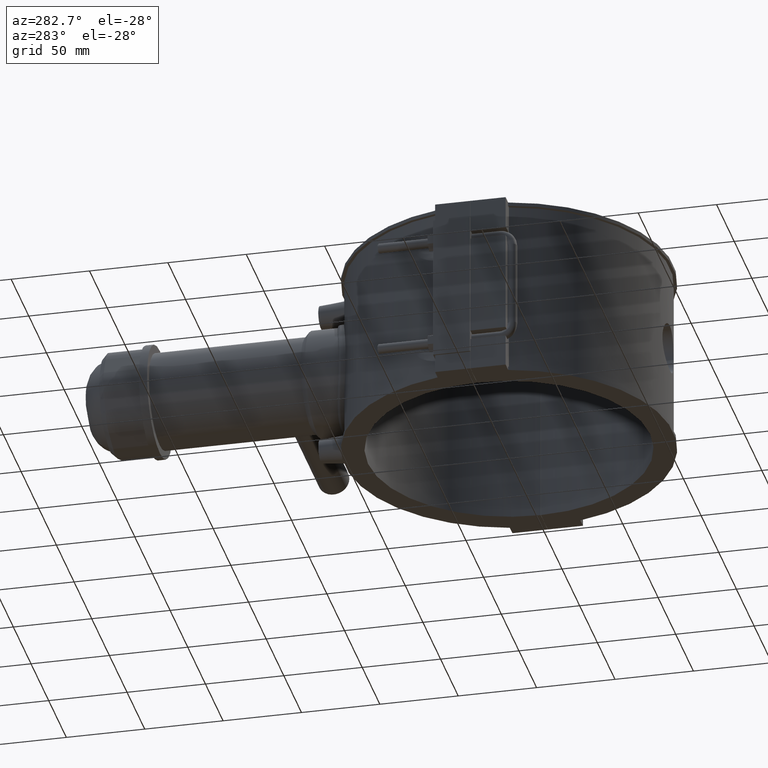
[diagram: clean part render]
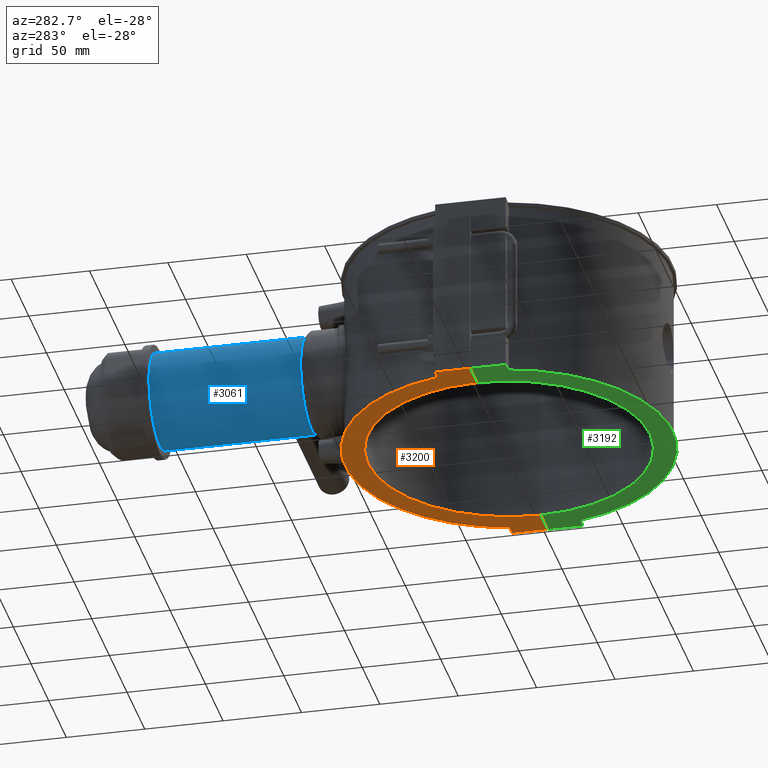
[diagram: same view with three faces highlighted in distinct colors, each labeled with its STEP entity id]
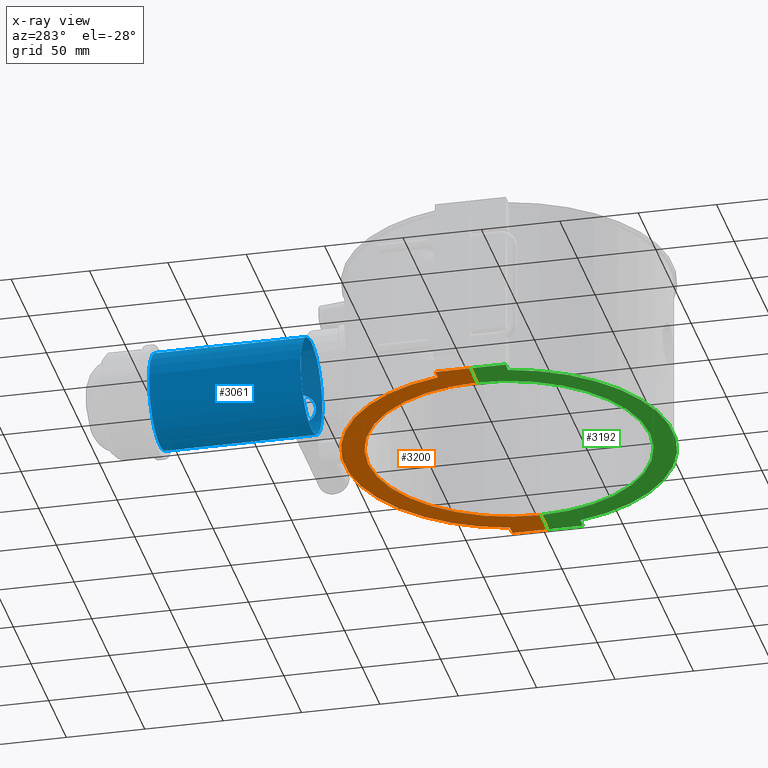
[diagram: x-ray of the same camera — body ghosted, the three highlighted faces saturated]
A machine part, auxiliary view with three faces highlighted in distinct colors.
The next image is the same camera in x-ray (body ghosted, the three faces saturated) — at least one of them is partly hidden behind the body in this view.
Their STEP definitions:

[orange] entity #3200 — the highlighted planar face has unit normal (0, 0, 1).
#108=LINE('',#5175,#387);
#171=LINE('',#5557,#450);
#267=LINE('',#6150,#546);
#316=LINE('',#6461,#595);
#318=LINE('',#6464,#597);
#319=LINE('',#6466,#598);
#387=VECTOR('',#3748,7.29534695523888);
#450=VECTOR('',#3875,22.45);
#546=VECTOR('',#4161,19.50001388889);
#595=VECTOR('',#4322,19.5000138888899);
#597=VECTOR('',#4326,7.29534695523888);
#598=VECTOR('',#4329,22.45);
#935=FACE_OUTER_BOUND('',#1174,.T.);
#1174=EDGE_LOOP('',(#2892,#2893,#2894,#2895,#2896,#2897,#2898,#2899));
#1211=CIRCLE('',#3289,104.652);
#1282=CIRCLE('',#3486,90.);
#1351=VERTEX_POINT('',#5139);
#1352=VERTEX_POINT('',#5140);
#1365=VERTEX_POINT('',#5173);
#1441=VERTEX_POINT('',#5554);
#1442=VERTEX_POINT('',#5556);
#1532=VERTEX_POINT('',#6149);
#1575=VERTEX_POINT('',#6458);
#1576=VERTEX_POINT('',#6460);
#1681=EDGE_CURVE('',#1351,#1352,#1211,.T.);
#1698=EDGE_CURVE('',#1351,#1365,#108,.T.);
#1792=EDGE_CURVE('',#1442,#1441,#171,.T.);
#1932=EDGE_CURVE('',#1532,#1442,#267,.T.);
#2008=EDGE_CURVE('',#1576,#1575,#316,.T.);
#2010=EDGE_CURVE('',#1441,#1352,#318,.T.);
#2011=EDGE_CURVE('',#1365,#1576,#319,.T.);
#2013=EDGE_CURVE('',#1575,#1532,#1282,.T.);
#2892=ORIENTED_EDGE('',*,*,#2008,.T.);
#2893=ORIENTED_EDGE('',*,*,#2013,.T.);
#2894=ORIENTED_EDGE('',*,*,#1932,.T.);
#2895=ORIENTED_EDGE('',*,*,#1792,.T.);
#2896=ORIENTED_EDGE('',*,*,#2010,.T.);
#2897=ORIENTED_EDGE('',*,*,#1681,.F.);
#2898=ORIENTED_EDGE('',*,*,#1698,.T.);
#2899=ORIENTED_EDGE('',*,*,#2011,.T.);
#3016=PLANE('',#3487);
#3200=ADVANCED_FACE('',(#935),#3016,.F.);
#3289=AXIS2_PLACEMENT_3D('',#5141,#3717,#3718);
#3486=AXIS2_PLACEMENT_3D('',#6469,#4334,#4335);
#3487=AXIS2_PLACEMENT_3D('',#6470,#4336,#4337);
#3717=DIRECTION('center_axis',(0.,0.,1.));
#3718=DIRECTION('ref_axis',(0.976614427290077,0.21499828001376,0.));
#3748=DIRECTION('',(1.,0.,0.));
#3875=DIRECTION('',(0.,1.,0.));
#4161=DIRECTION('',(-1.,1.58422235249023E-19,0.));
#4322=DIRECTION('',(-1.,1.58422235249023E-19,0.));
#4326=DIRECTION('',(1.,0.,0.));
#4329=DIRECTION('',(0.,-1.,0.));
#4334=DIRECTION('center_axis',(0.,0.,1.));
#4335=DIRECTION('ref_axis',(-1.,0.,0.));
#4336=DIRECTION('center_axis',(0.,0.,1.));
#4337=DIRECTION('ref_axis',(1.,0.,0.));
#5139=CARTESIAN_POINT('',(102.204653044761,22.5,-59.));
#5140=CARTESIAN_POINT('',(-102.204653044761,22.5,-59.));
#5141=CARTESIAN_POINT('Origin',(0.,0.,-59.));
#5173=CARTESIAN_POINT('',(109.5,22.5,-59.));
#5175=CARTESIAN_POINT('',(109.5,22.5,-59.));
#5554=CARTESIAN_POINT('',(-109.5,22.5,-59.));
#5556=CARTESIAN_POINT('',(-109.5,0.0499999999999989,-59.));
#5557=CARTESIAN_POINT('',(-109.5,22.5,-59.));
#6149=CARTESIAN_POINT('',(-89.99998611111,0.0499999999999989,-59.));
#6150=CARTESIAN_POINT('',(1.79648330050455,0.0499999999999989,-59.));
#6458=CARTESIAN_POINT('',(89.99998611111,0.0499999999999989,-59.));
#6460=CARTESIAN_POINT('',(109.5,0.0499999999999989,-59.));
#6461=CARTESIAN_POINT('',(1.79648330050455,0.0499999999999989,-59.));
#6464=CARTESIAN_POINT('',(-100.102497471342,22.5,-59.));
#6466=CARTESIAN_POINT('',(109.5,-22.5,-59.));
#6469=CARTESIAN_POINT('Origin',(0.,0.,-59.));
#6470=CARTESIAN_POINT('Origin',(-105.907033398991,1.00372537223288E-16,
-59.));

[blue] entity #3061 — the highlighted cylindrical surface (bore or boss wall) has radius 30.6 mm, axis along (0, 1, 0).
#608=FACE_BOUND('',#990,.T.);
#609=FACE_BOUND('',#991,.T.);
#658=B_SPLINE_CURVE_WITH_KNOTS('',3,(#4525,#4526,#4527,#4528,#4529,#4530,
#4531,#4532,#4533,#4534,#4535,#4536,#4537,#4538,#4539,#4540,#4541,#4542,
#4543,#4544,#4545,#4546,#4547,#4548,#4549,#4550,#4551,#4552,#4553,#4554,
#4555,#4556,#4557,#4558),.UNSPECIFIED.,.T.,.F.,(4,2,2,2,2,2,2,2,2,2,2,2,
2,2,2,2,4),(0.,0.379801307840264,0.759602615680529,1.13924189562718,1.51888117557384,
1.89852045552049,2.27815973546714,2.65796104330741,3.03776235114767,3.41756365898794,
3.7973649668282,4.17700424677486,4.55664352672151,4.93628280666816,5.31592208661482,
5.69572339445508,6.07552470229535),.UNSPECIFIED.);
#716=CYLINDRICAL_SURFACE('',#3278,30.6);
#796=FACE_OUTER_BOUND('',#989,.T.);
#989=EDGE_LOOP('',(#2196));
#990=EDGE_LOOP('',(#2197));
#991=EDGE_LOOP('',(#2198));
#1201=CIRCLE('',#3261,30.6);
#1208=CIRCLE('',#3279,30.6);
#1290=VERTEX_POINT('',#4524);
#1334=VERTEX_POINT('',#4697);
#1344=VERTEX_POINT('',#4766);
#1584=EDGE_CURVE('',#1290,#1290,#658,.T.);
#1652=EDGE_CURVE('',#1334,#1334,#1201,.T.);
#1671=EDGE_CURVE('',#1344,#1344,#1208,.T.);
#2196=ORIENTED_EDGE('',*,*,#1652,.T.);
#2197=ORIENTED_EDGE('',*,*,#1584,.T.);
#2198=ORIENTED_EDGE('',*,*,#1671,.F.);
#3061=ADVANCED_FACE('',(#796,#608,#609),#716,.T.);
#3261=AXIS2_PLACEMENT_3D('',#4698,#3650,#3651);
#3278=AXIS2_PLACEMENT_3D('',#4765,#3695,#3696);
#3279=AXIS2_PLACEMENT_3D('',#4767,#3697,#3698);
#3650=DIRECTION('center_axis',(0.,1.,3.06161699786838E-16));
#3651=DIRECTION('ref_axis',(1.,0.,0.));
#3695=DIRECTION('center_axis',(0.,1.,3.06161699786838E-16));
#3696=DIRECTION('ref_axis',(0.,0.,1.));
#3697=DIRECTION('center_axis',(0.,1.,3.06161699786838E-16));
#3698=DIRECTION('ref_axis',(1.,0.,0.));
#4524=CARTESIAN_POINT('',(28.9198893497192,140.,-10.));
#4525=CARTESIAN_POINT('Ctrl Pts',(28.9198893497192,140.,-10.));
#4526=CARTESIAN_POINT('Ctrl Pts',(28.9198893497192,138.733995640532,-10.));
#4527=CARTESIAN_POINT('Ctrl Pts',(29.0117476879204,137.390597467506,-9.74507535202427));
#4528=CARTESIAN_POINT('Ctrl Pts',(29.3356105596978,134.929935462719,-8.72180812961023));
#4529=CARTESIAN_POINT('Ctrl Pts',(29.562117183714,133.811768720189,-7.95390434391968));
#4530=CARTESIAN_POINT('Ctrl Pts',(29.9813908363416,132.046472284967,-6.18860790869784));
#4531=CARTESIAN_POINT('Ctrl Pts',(30.2024962346254,131.278278195008,-5.0702905300735));
#4532=CARTESIAN_POINT('Ctrl Pts',(30.51378978599,130.254794931872,-2.60907219497214));
#4533=CARTESIAN_POINT('Ctrl Pts',(30.6,130.,-1.26546426648885));
#4534=CARTESIAN_POINT('Ctrl Pts',(30.6,130.,1.26546426648885));
#4535=CARTESIAN_POINT('Ctrl Pts',(30.51378978599,130.254794931872,2.60907219497216));
#4536=CARTESIAN_POINT('Ctrl Pts',(30.2024962346254,131.278278195008,5.07029053007352));
#4537=CARTESIAN_POINT('Ctrl Pts',(29.9813908363416,132.046472284967,6.18860790869784));
#4538=CARTESIAN_POINT('Ctrl Pts',(29.562117183714,133.811768720189,7.95390434391968));
#4539=CARTESIAN_POINT('Ctrl Pts',(29.3356105596978,134.929935462718,8.72180812961023));
#4540=CARTESIAN_POINT('Ctrl Pts',(29.0117476879204,137.390597467506,9.74507535202427));
#4541=CARTESIAN_POINT('Ctrl Pts',(28.9198893497192,138.733995640532,10.));
#4542=CARTESIAN_POINT('Ctrl Pts',(28.9198893497192,141.266004359468,10.));
#4543=CARTESIAN_POINT('Ctrl Pts',(29.0117476879204,142.609402532494,9.74507535202427));
#4544=CARTESIAN_POINT('Ctrl Pts',(29.3356105596978,145.070064537282,8.72180812961023));
#4545=CARTESIAN_POINT('Ctrl Pts',(29.562117183714,146.188231279811,7.95390434391969));
#4546=CARTESIAN_POINT('Ctrl Pts',(29.9813908363416,147.953527715033,6.18860790869784));
#4547=CARTESIAN_POINT('Ctrl Pts',(30.2024962346254,148.721721804992,5.07029053007349));
#4548=CARTESIAN_POINT('Ctrl Pts',(30.51378978599,149.745205068128,2.60907219497213));
#4549=CARTESIAN_POINT('Ctrl Pts',(30.6,150.,1.26546426648885));
#4550=CARTESIAN_POINT('Ctrl Pts',(30.6,150.,-1.26546426648884));
#4551=CARTESIAN_POINT('Ctrl Pts',(30.51378978599,149.745205068128,-2.60907219497213));
#4552=CARTESIAN_POINT('Ctrl Pts',(30.2024962346254,148.721721804992,-5.0702905300735));
#4553=CARTESIAN_POINT('Ctrl Pts',(29.9813908363416,147.953527715033,-6.18860790869784));
#4554=CARTESIAN_POINT('Ctrl Pts',(29.562117183714,146.188231279811,-7.95390434391968));
#4555=CARTESIAN_POINT('Ctrl Pts',(29.3356105596978,145.070064537282,-8.72180812961023));
#4556=CARTESIAN_POINT('Ctrl Pts',(29.0117476879204,142.609402532494,-9.74507535202427));
#4557=CARTESIAN_POINT('Ctrl Pts',(28.9198893497192,141.266004359468,-10.));
#4558=CARTESIAN_POINT('Ctrl Pts',(28.9198893497192,140.,-10.));
#4697=CARTESIAN_POINT('',(0.,126.,30.6));
#4698=CARTESIAN_POINT('Origin',(0.,126.,1.10218211923262E-14));
#4765=CARTESIAN_POINT('Origin',(0.,174.375,2.58323934195145E-14));
#4766=CARTESIAN_POINT('',(0.,222.75,30.6000000000001));
#4767=CARTESIAN_POINT('Origin',(0.,222.75,4.06429656467028E-14));

[green] entity #3192 — the highlighted planar face has unit normal (0, 0, 1).
#118=LINE('',#5225,#397);
#137=LINE('',#5414,#416);
#263=LINE('',#6141,#542);
#304=LINE('',#6431,#583);
#309=LINE('',#6440,#588);
#312=LINE('',#6450,#591);
#397=VECTOR('',#3764,7.29534695523888);
#416=VECTOR('',#3817,7.29534695523887);
#542=VECTOR('',#4151,22.45);
#583=VECTOR('',#4288,19.5000138888899);
#588=VECTOR('',#4297,22.45);
#591=VECTOR('',#4310,19.50001388889);
#927=FACE_OUTER_BOUND('',#1163,.T.);
#1163=EDGE_LOOP('',(#2831,#2832,#2833,#2834,#2835,#2836,#2837,#2838));
#1214=CIRCLE('',#3294,104.652);
#1279=CIRCLE('',#3475,90.);
#1357=VERTEX_POINT('',#5154);
#1358=VERTEX_POINT('',#5155);
#1378=VERTEX_POINT('',#5223);
#1407=VERTEX_POINT('',#5413);
#1530=VERTEX_POINT('',#6139);
#1568=VERTEX_POINT('',#6428);
#1569=VERTEX_POINT('',#6430);
#1572=VERTEX_POINT('',#6444);
#1688=EDGE_CURVE('',#1357,#1358,#1214,.T.);
#1712=EDGE_CURVE('',#1357,#1378,#118,.T.);
#1747=EDGE_CURVE('',#1407,#1358,#137,.T.);
#1928=EDGE_CURVE('',#1378,#1530,#263,.T.);
#1994=EDGE_CURVE('',#1569,#1568,#304,.T.);
#1999=EDGE_CURVE('',#1568,#1407,#309,.T.);
#2001=EDGE_CURVE('',#1572,#1569,#1279,.T.);
#2004=EDGE_CURVE('',#1530,#1572,#312,.T.);
#2831=ORIENTED_EDGE('',*,*,#1994,.T.);
#2832=ORIENTED_EDGE('',*,*,#1999,.T.);
#2833=ORIENTED_EDGE('',*,*,#1747,.T.);
#2834=ORIENTED_EDGE('',*,*,#1688,.F.);
#2835=ORIENTED_EDGE('',*,*,#1712,.T.);
#2836=ORIENTED_EDGE('',*,*,#1928,.T.);
#2837=ORIENTED_EDGE('',*,*,#2004,.T.);
#2838=ORIENTED_EDGE('',*,*,#2001,.T.);
#3009=PLANE('',#3477);
#3192=ADVANCED_FACE('',(#927),#3009,.F.);
#3294=AXIS2_PLACEMENT_3D('',#5156,#3731,#3732);
#3475=AXIS2_PLACEMENT_3D('',#6445,#4303,#4304);
#3477=AXIS2_PLACEMENT_3D('',#6449,#4308,#4309);
#3731=DIRECTION('center_axis',(0.,0.,1.));
#3732=DIRECTION('ref_axis',(-0.976614427290077,-0.21499828001376,0.));
#3764=DIRECTION('',(-1.,0.,0.));
#3817=DIRECTION('',(-1.,0.,0.));
#4151=DIRECTION('',(0.,1.,0.));
#4288=DIRECTION('',(1.,1.58422235249023E-19,0.));
#4297=DIRECTION('',(0.,-1.,0.));
#4303=DIRECTION('center_axis',(0.,0.,1.));
#4304=DIRECTION('ref_axis',(-1.,0.,0.));
#4308=DIRECTION('center_axis',(0.,0.,1.));
#4309=DIRECTION('ref_axis',(1.,0.,0.));
#4310=DIRECTION('',(1.,1.58422235249023E-19,0.));
#5154=CARTESIAN_POINT('',(-102.204653044761,-22.5,-59.));
#5155=CARTESIAN_POINT('',(102.204653044761,-22.5,-59.));
#5156=CARTESIAN_POINT('Origin',(0.,0.,-59.));
#5223=CARTESIAN_POINT('',(-109.5,-22.5,-59.));
#5225=CARTESIAN_POINT('',(-109.5,-22.5,-59.));
#5413=CARTESIAN_POINT('',(109.5,-22.5,-59.));
#5414=CARTESIAN_POINT('',(100.102497471342,-22.5,-59.));
#6139=CARTESIAN_POINT('',(-109.5,-0.0499999999999989,-59.));
#6141=CARTESIAN_POINT('',(-109.5,22.5,-59.));
#6428=CARTESIAN_POINT('',(109.5,-0.0499999999999989,-59.));
#6430=CARTESIAN_POINT('',(89.99998611111,-0.0499999999999989,-59.));
#6431=CARTESIAN_POINT('',(-107.703516699495,-0.0499999999999989,-59.));
#6440=CARTESIAN_POINT('',(109.5,-22.5,-59.));
#6444=CARTESIAN_POINT('',(-89.99998611111,-0.0499999999999989,-59.));
#6445=CARTESIAN_POINT('Origin',(0.,0.,-59.));
#6449=CARTESIAN_POINT('Origin',(-105.907033398991,1.00372537223288E-16,
-59.));
#6450=CARTESIAN_POINT('',(-107.703516699495,-0.0499999999999989,-59.));